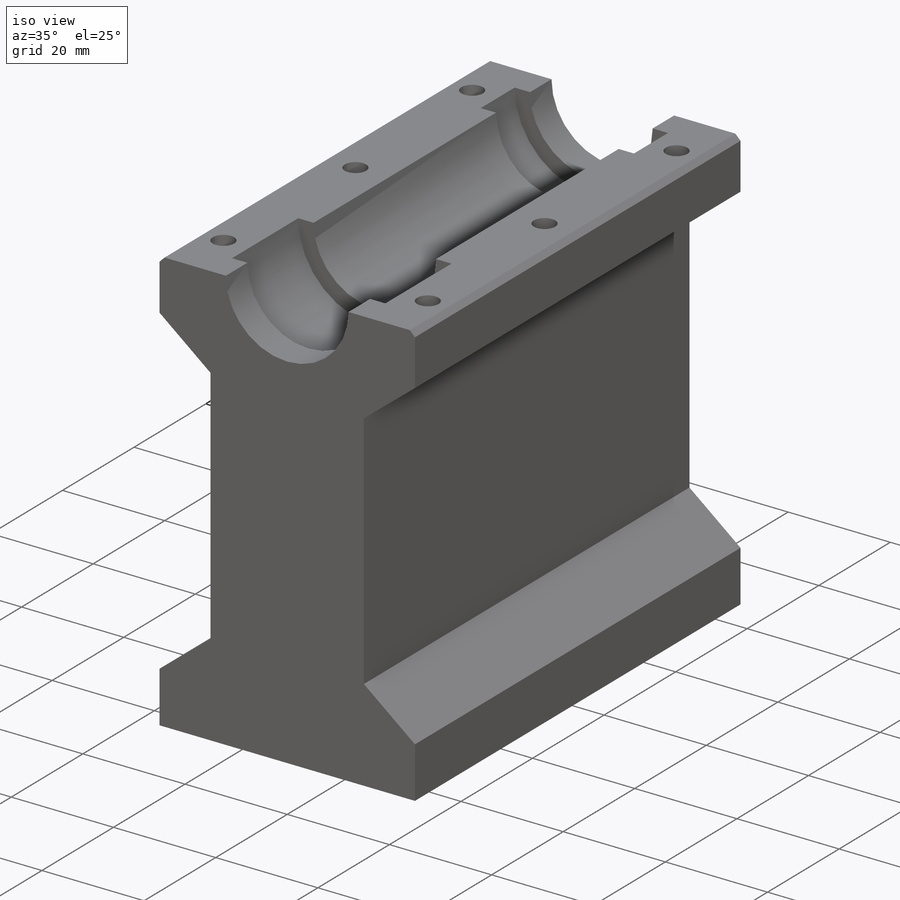
[diagram: iso view]
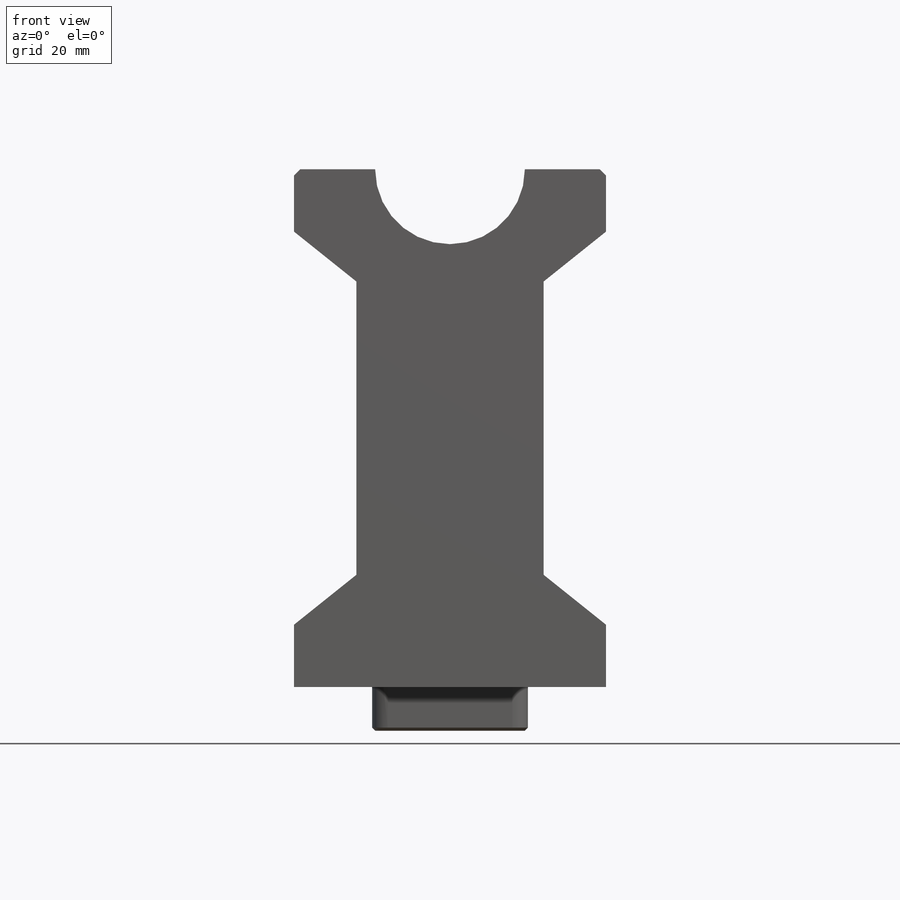
[diagram: front view]
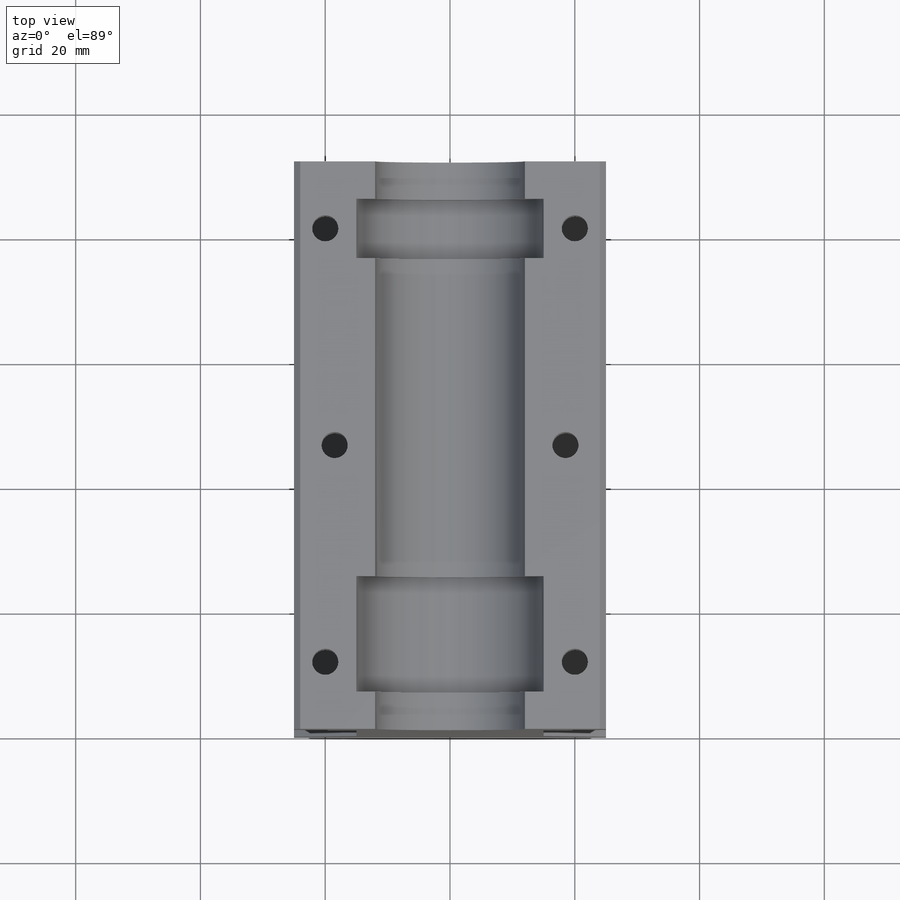
[diagram: top view]
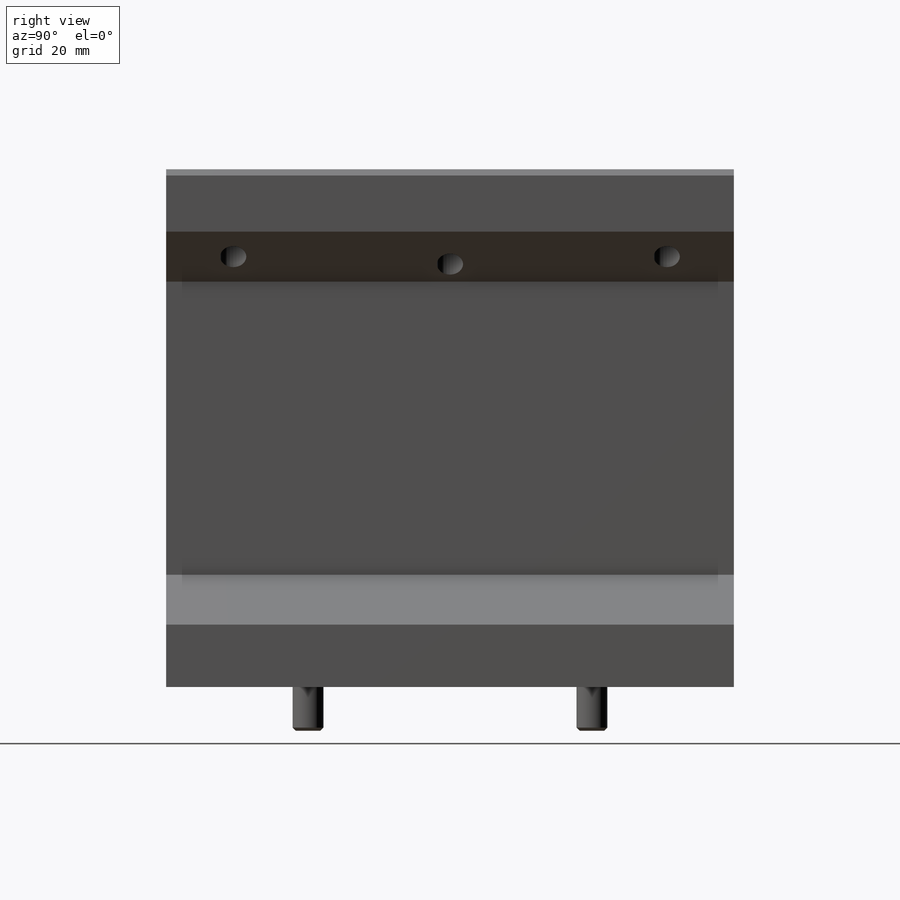
[diagram: right view]
SOLIDWORKS PART (.sldprt)
format: sldprt  version: not decoded by parser v0  size: 553,472 bytes
history: native  units: mm
features: sketch x9, thread x9, extrude x2, cut_revolve x2, hole x2, chamfer x2, material x1 (+13 scaffold rows collapsed)
feature tree (40):
  scaffold x13  (default folders/planes/origin — collapsed)
  material  "2024-T361"
  sketch  "Sketch1"  dims[c1.D1=8.0mm c1.D3=7.0mm c1.D4=12.0mm c2.D1=8.0mm c2.D2=10.0mm c2.D3=50.0mm c2.D5=83.0mm c2.D6=8.0mm c2.D7=10.0mm c2.D8=30.0mm]
  extrude  "Boss-Extrude1"  Depth=91mm
  sketch  "Sketch8"  dims[c1.D1=68.0mm c1.D2=9.5mm c2.D1=5.0mm c2.D3=15.0mm c2.D4=51.0mm c2.D5=18.5mm c3.D1=6.0mm c3.D6=5.0mm]
  cut_revolve  "Cut-Revolve2"  Angle=360deg
  hole  "Отверстие обработанное метчиком M5x0.81"  [1 undecoded]
  sketch  "Sketch5"
  thread  "Hole Thread1"  Diameter=5mm  [1 undecoded]
  thread  "Hole Thread2"  Diameter=5mm  [1 undecoded]
  thread  "Hole Thread3"  Diameter=5mm  [1 undecoded]
  thread  "Hole Thread4"  Diameter=5mm  [1 undecoded]
  thread  "Hole Thread5"  Diameter=5mm  [1 undecoded]
  thread  "Hole Thread6"  Diameter=5mm  [1 undecoded]
  sketch  "Sketch6"  dims[hole-wizard template sketch: 59 standard entries collapsed; hole parameters kept: c18.Диаметр проходного сверла=4.2mm c18.Глубина проходного сверла=14.0mm]
  cut_revolve  "Axis1"  [1 undecoded]
  sketch  "Sketch9"  dims[D1=20.0mm]
  extrude  "Boss-Extrude2"  Depth=7mm
  chamfer  "Chamfer1"  Distance=0.5mm Angle=45deg
  sketch  "Sketch10"
  chamfer  "Фаска1"  Distance=1mm Angle=45deg
  sketch  "Эскиз2"
  hole  "Отверстие обработанное метчиком M5x0.82"  [1 undecoded]
  sketch  "Эскиз4"
  sketch  "Эскиз5"  dims[hole-wizard template sketch: 46 standard entries collapsed; hole parameters kept: c15.Диаметр сверла=4.2mm c15.Глубина сверла=17.4mm c15.D3=~14.816244mm c15.Угол заточки сверла=118.0deg]
  thread  "Отверстие резьбы1"  Diameter=15mm  [1 undecoded]
  thread  "Отверстие резьбы2"  Diameter=15mm  [1 undecoded]
  thread  "Отверстие резьбы3"  Diameter=15mm  [1 undecoded]
decode coverage: 19 of 26 modeling features carry decoded parameters
note: ~ marks probable driven/reference dimensions
note: 12 parameter values undecoded
summary: no parameter record found for 3 features
note: suppression state not decoded; provenance and decode notes live in map.json
